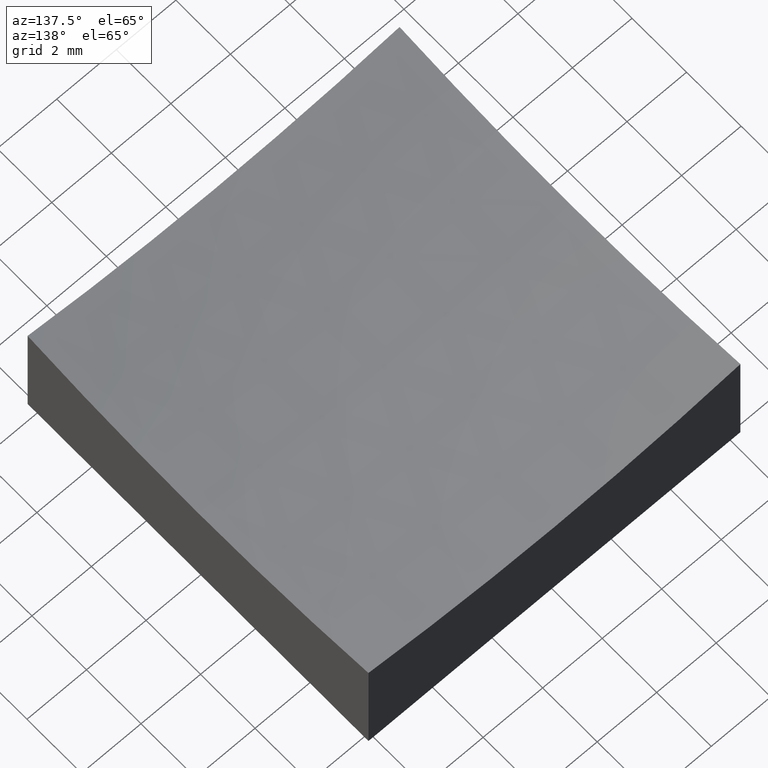
[diagram: clean part render]
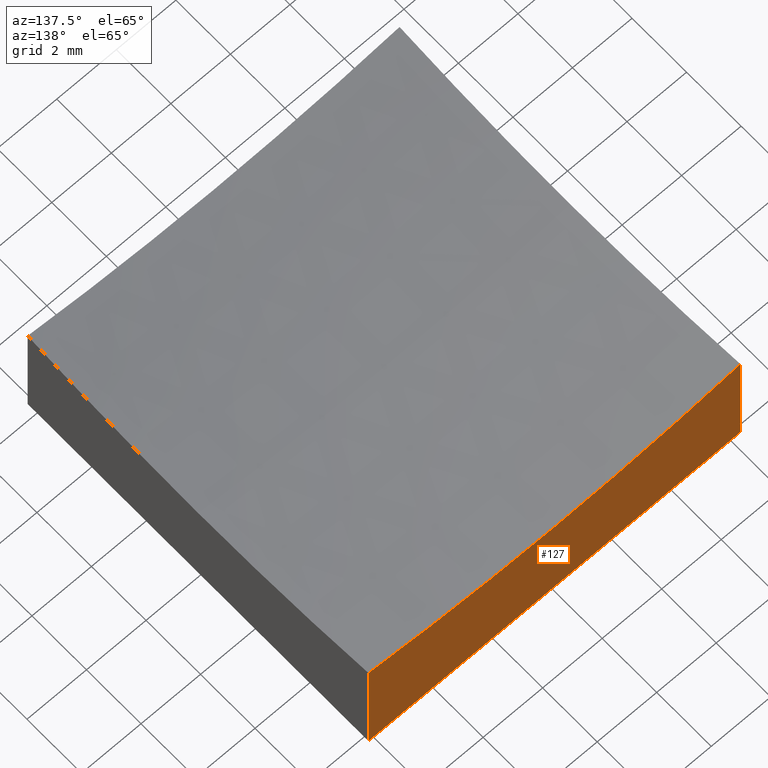
[diagram: same view with one face highlighted and labeled with its STEP entity id]
A machine part, auxiliary view. The second image highlights one B-rep face of the part: STEP entity #127.
In plain terms, the highlighted planar face has unit normal (0, 1, 0).
Its self-contained STEP definition (entity closure, byte-faithful):
#10 = DIRECTION ( 'NONE',  ( 1.000000000000000000, 0.0000000000000000000, 0.0000000000000000000 ) ) ;
#13 = CARTESIAN_POINT ( 'NONE',  ( 6.250000000000000000, 6.250000000000000888, 0.0000000000000000000 ) ) ;
#19 = AXIS2_PLACEMENT_3D ( 'NONE', #210, #148, #212 ) ;
#23 = VERTEX_POINT ( 'NONE', #174 ) ;
#31 = PLANE ( 'NONE',  #205 ) ;
#48 = CARTESIAN_POINT ( 'NONE',  ( -6.250000000000000000, 6.250000000000000888, 0.0000000000000000000 ) ) ;
#54 = CARTESIAN_POINT ( 'NONE',  ( -6.250000000000000000, 6.250000000000000888, 10.00000000000000000 ) ) ;
#59 = LINE ( 'NONE', #54, #122 ) ;
#65 = EDGE_CURVE ( 'NONE', #23, #183, #191, .T. ) ;
#69 = EDGE_LOOP ( 'NONE', ( #100, #121, #145, #123 ) ) ;
#95 = DIRECTION ( 'NONE',  ( -0.0000000000000000000, -0.0000000000000000000, -1.000000000000000000 ) ) ;
#96 = EDGE_CURVE ( 'NONE', #23, #125, #98, .T. ) ;
#98 = CIRCLE ( 'NONE', #19, 39.50870157319778286 ) ;
#100 = ORIENTED_EDGE ( 'NONE', *, *, #96, .F. ) ;
#111 = VECTOR ( 'NONE', #10, 1000.000000000000000 ) ;
#113 = CARTESIAN_POINT ( 'NONE',  ( -6.250000000000000000, 6.250000000000000888, 10.00000000000000000 ) ) ;
#114 = EDGE_CURVE ( 'NONE', #185, #183, #152, .T. ) ;
#121 = ORIENTED_EDGE ( 'NONE', *, *, #65, .T. ) ;
#122 = VECTOR ( 'NONE', #95, 1000.000000000000000 ) ;
#123 = ORIENTED_EDGE ( 'NONE', *, *, #233, .F. ) ;
#125 = VERTEX_POINT ( 'NONE', #128 ) ;
#127 = ADVANCED_FACE ( 'NONE', ( #243 ), #31, .T. ) ;
#128 = CARTESIAN_POINT ( 'NONE',  ( -6.250000000000000000, 6.250000000000000888, 3.988783664181906552 ) ) ;
#135 = CARTESIAN_POINT ( 'NONE',  ( -6.250000000000000000, 6.250000000000000888, 0.0000000000000000000 ) ) ;
#145 = ORIENTED_EDGE ( 'NONE', *, *, #114, .F. ) ;
#148 = DIRECTION ( 'NONE',  ( 0.0000000000000000000, 1.000000000000000000, 0.0000000000000000000 ) ) ;
#152 = LINE ( 'NONE', #48, #111 ) ;
#153 = CARTESIAN_POINT ( 'NONE',  ( 6.250000000000000000, 6.250000000000000888, 10.00000000000000000 ) ) ;
#173 = DIRECTION ( 'NONE',  ( 0.0000000000000000000, -0.0000000000000000000, 1.000000000000000000 ) ) ;
#174 = CARTESIAN_POINT ( 'NONE',  ( 6.250000000000000000, 6.250000000000000888, 3.988783664181906552 ) ) ;
#183 = VERTEX_POINT ( 'NONE', #13 ) ;
#185 = VERTEX_POINT ( 'NONE', #135 ) ;
#191 = LINE ( 'NONE', #153, #235 ) ;
#192 = DIRECTION ( 'NONE',  ( 0.0000000000000000000, 1.000000000000000000, 0.0000000000000000000 ) ) ;
#205 = AXIS2_PLACEMENT_3D ( 'NONE', #113, #192, #173 ) ;
#210 = CARTESIAN_POINT ( 'NONE',  ( 5.265981236333619259E-15, 6.250000000000000888, 43.00000000000000000 ) ) ;
#212 = DIRECTION ( 'NONE',  ( 0.0000000000000000000, 0.0000000000000000000, 1.000000000000000000 ) ) ;
#233 = EDGE_CURVE ( 'NONE', #125, #185, #59, .T. ) ;
#235 = VECTOR ( 'NONE', #241, 1000.000000000000000 ) ;
#241 = DIRECTION ( 'NONE',  ( -0.0000000000000000000, -0.0000000000000000000, -1.000000000000000000 ) ) ;
#243 = FACE_OUTER_BOUND ( 'NONE', #69, .T. ) ;